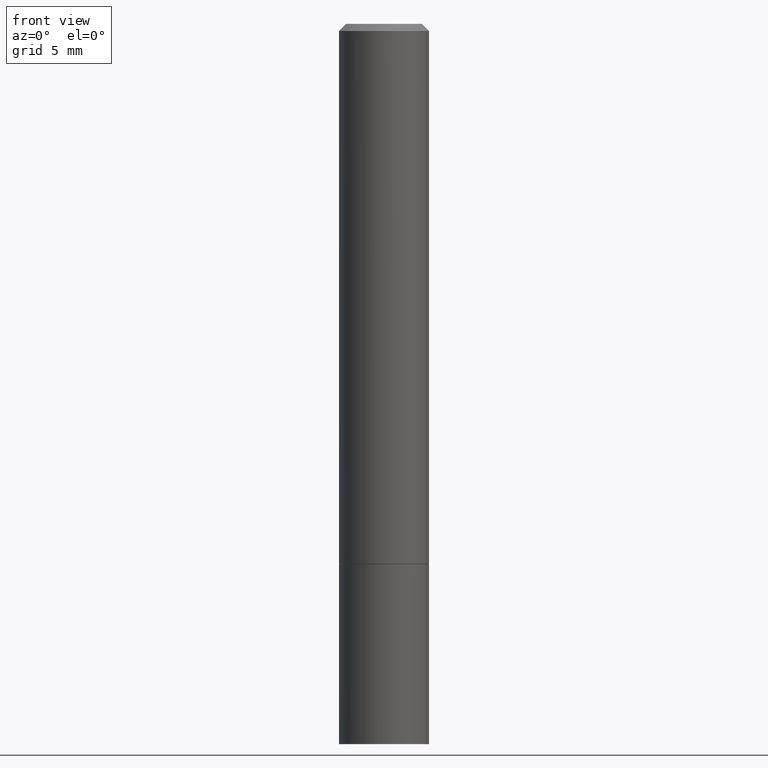
[diagram: clean part render]
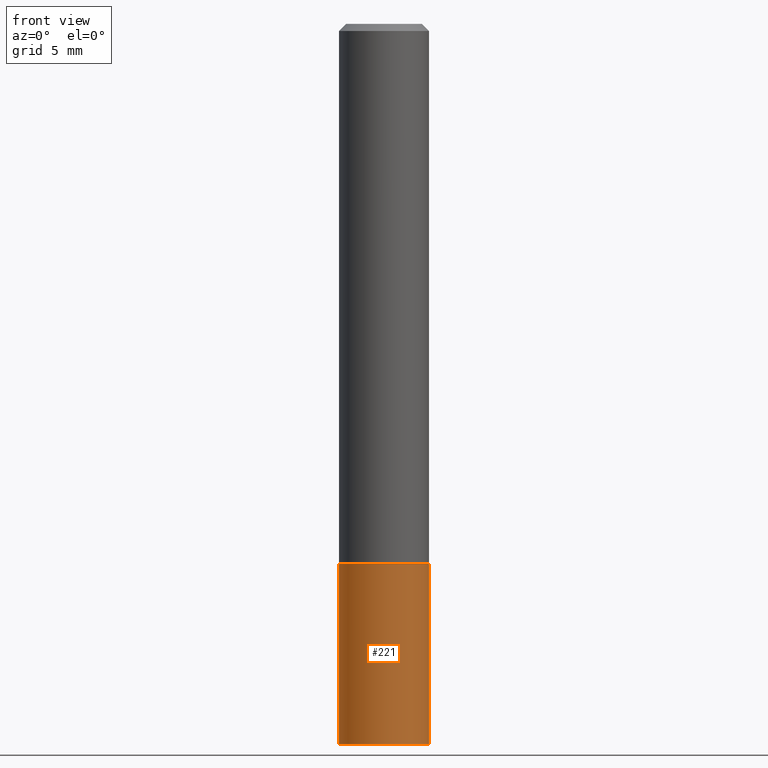
[diagram: same view with one face highlighted and labeled with its STEP entity id]
A machine part, front view. The second image highlights one B-rep face of the part: STEP entity #221.
In plain terms, the highlighted cylindrical surface (partial cylindrical patch) has radius 3.175 mm, axis along (-0, 0, 1).
Its self-contained STEP definition (entity closure, byte-faithful):
#6 = AXIS2_PLACEMENT_3D ( 'NONE', #290, #231, #134 ) ;
#10 = VECTOR ( 'NONE', #197, 39.37007874015748143 ) ;
#30 = LINE ( 'NONE', #253, #343 ) ;
#32 = CARTESIAN_POINT ( 'NONE',  ( 0.1250000000000000000, -7.855833012397075293E-15, -2.000000000000000000 ) ) ;
#47 = CARTESIAN_POINT ( 'NONE',  ( -0.1250000000000000000, -5.221913923275378650E-15, -2.000000000000000000 ) ) ;
#58 = CIRCLE ( 'NONE', #6, 0.1250000000000000000 ) ;
#69 = CARTESIAN_POINT ( 'NONE',  ( 0.1250000000000000000, -6.110092342975501516E-15, -1.499999999999999778 ) ) ;
#81 = DIRECTION ( 'NONE',  ( 1.000000000000000000, -6.982962677686266711E-15, 4.876176775795935793E-29 ) ) ;
#93 = CIRCLE ( 'NONE', #138, 0.1250000000000000000 ) ;
#94 = ORIENTED_EDGE ( 'NONE', *, *, #109, .T. ) ;
#103 = CARTESIAN_POINT ( 'NONE',  ( 0.000000000000000000, 0.000000000000000000, 0.000000000000000000 ) ) ;
#108 = CARTESIAN_POINT ( 'NONE',  ( 0.1250000000000000000, -8.728703347107833388E-16, 6.095220969744919741E-30 ) ) ;
#109 = EDGE_CURVE ( 'NONE', #113, #238, #93, .T. ) ;
#113 = VERTEX_POINT ( 'NONE', #47 ) ;
#117 = VERTEX_POINT ( 'NONE', #269 ) ;
#134 = DIRECTION ( 'NONE',  ( 1.000000000000000000, -6.982962677686270655E-15, 0.000000000000000000 ) ) ;
#135 = DIRECTION ( 'NONE',  ( -2.445468806185136597E-29, 3.491481338843145583E-15, 1.000000000000000000 ) ) ;
#138 = AXIS2_PLACEMENT_3D ( 'NONE', #219, #272, #222 ) ;
#170 = EDGE_LOOP ( 'NONE', ( #214, #94, #218, #207 ) ) ;
#174 = DIRECTION ( 'NONE',  ( -2.445468806185136877E-29, 3.491481338843145188E-15, 1.000000000000000000 ) ) ;
#176 = VERTEX_POINT ( 'NONE', #69 ) ;
#197 = DIRECTION ( 'NONE',  ( -2.445468806185136877E-29, 3.491481338843145188E-15, 1.000000000000000000 ) ) ;
#207 = ORIENTED_EDGE ( 'NONE', *, *, #351, .F. ) ;
#214 = ORIENTED_EDGE ( 'NONE', *, *, #332, .F. ) ;
#218 = ORIENTED_EDGE ( 'NONE', *, *, #349, .T. ) ;
#219 = CARTESIAN_POINT ( 'NONE',  ( 4.890937612370273194E-29, -6.982962677686291165E-15, -2.000000000000000000 ) ) ;
#221 = ADVANCED_FACE ( 'NONE', ( #304 ), #271, .T. ) ;
#222 = DIRECTION ( 'NONE',  ( 1.000000000000000000, -6.982962677686270655E-15, 0.000000000000000000 ) ) ;
#231 = DIRECTION ( 'NONE',  ( -2.445468806185136597E-29, 3.491481338843145583E-15, 1.000000000000000000 ) ) ;
#238 = VERTEX_POINT ( 'NONE', #32 ) ;
#249 = AXIS2_PLACEMENT_3D ( 'NONE', #103, #135, #81 ) ;
#253 = CARTESIAN_POINT ( 'NONE',  ( -0.1250000000000000000, 8.881784197001252323E-16, -6.148668862818632227E-30 ) ) ;
#260 = LINE ( 'NONE', #108, #10 ) ;
#269 = CARTESIAN_POINT ( 'NONE',  ( -0.1250000000000000000, -5.221913923275378650E-15, -1.499999999999999778 ) ) ;
#271 = CYLINDRICAL_SURFACE ( 'NONE', #249, 0.1250000000000000000 ) ;
#272 = DIRECTION ( 'NONE',  ( -2.445468806185136597E-29, 3.491481338843145583E-15, 1.000000000000000000 ) ) ;
#290 = CARTESIAN_POINT ( 'NONE',  ( 3.668203209277704335E-29, -5.237222008264717388E-15, -1.499999999999999778 ) ) ;
#304 = FACE_OUTER_BOUND ( 'NONE', #170, .T. ) ;
#332 = EDGE_CURVE ( 'NONE', #113, #117, #30, .T. ) ;
#343 = VECTOR ( 'NONE', #174, 39.37007874015748143 ) ;
#349 = EDGE_CURVE ( 'NONE', #238, #176, #260, .T. ) ;
#351 = EDGE_CURVE ( 'NONE', #117, #176, #58, .T. ) ;